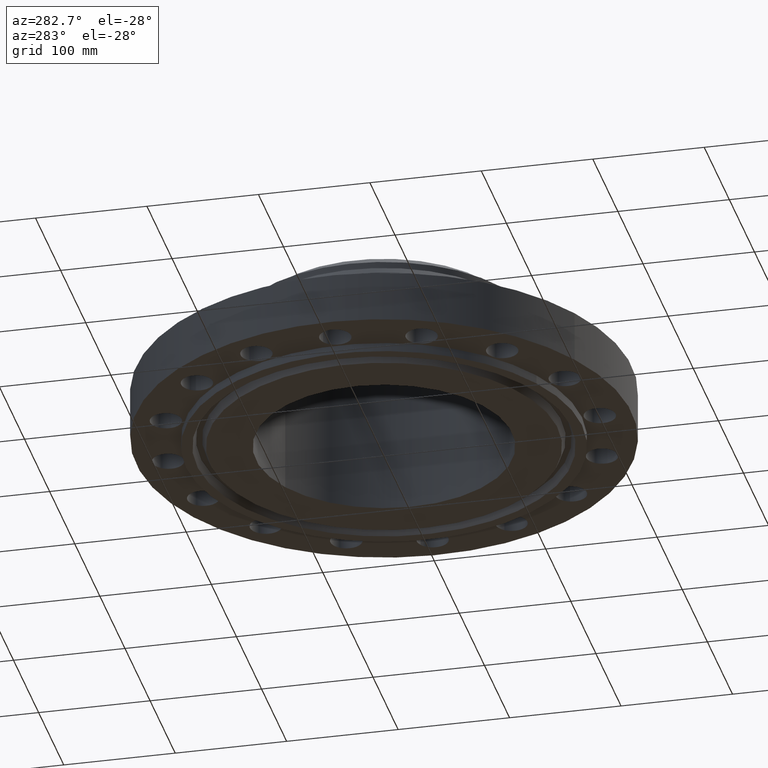
[diagram: clean part render]
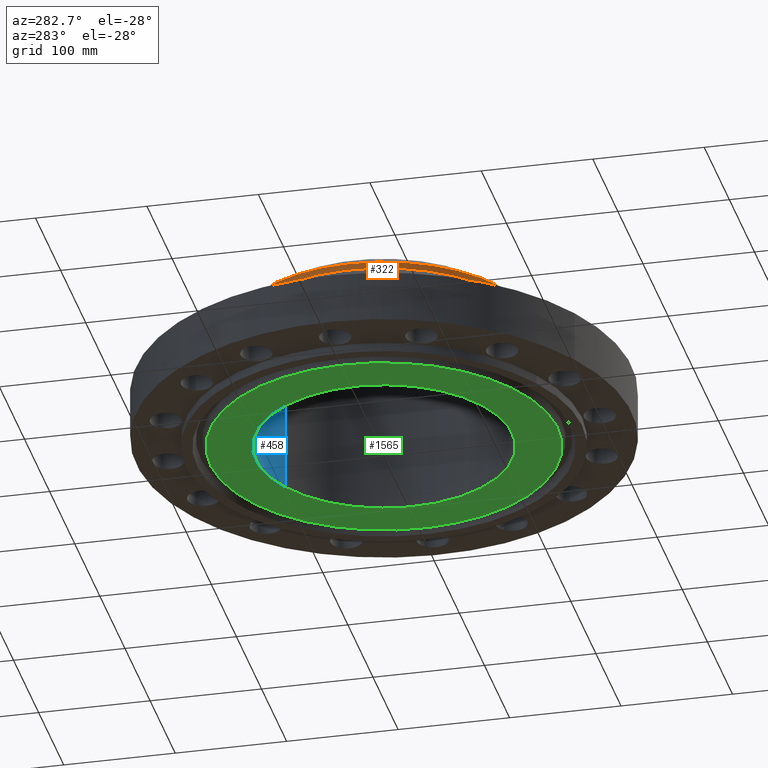
[diagram: same view with three faces highlighted in distinct colors, each labeled with its STEP entity id]
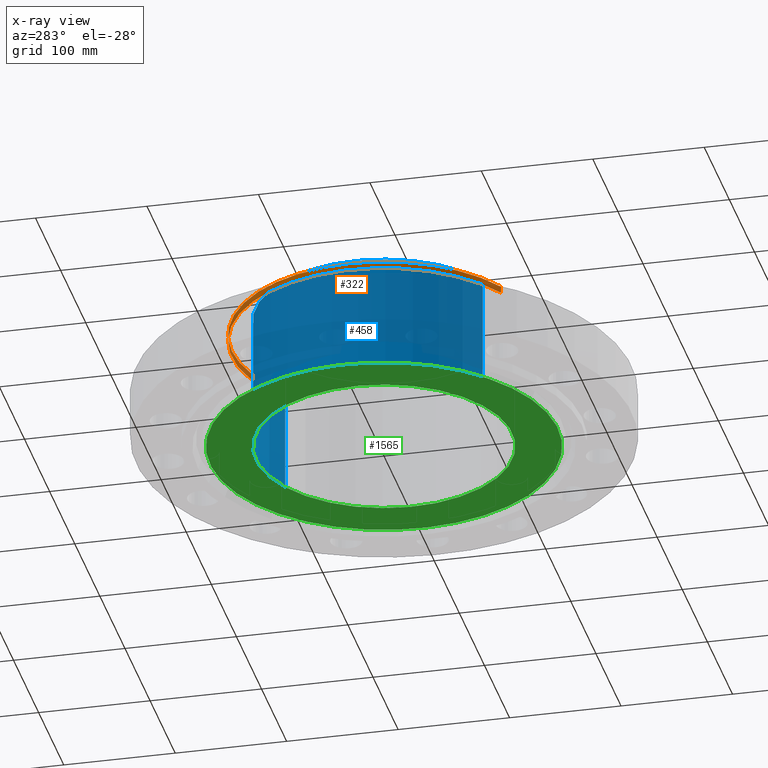
[diagram: x-ray of the same camera — body ghosted, the three highlighted faces saturated]
A machine part, auxiliary view with three faces highlighted in distinct colors.
The next image is the same camera in x-ray (body ghosted, the three faces saturated) — at least one of them is partly hidden behind the body in this view.
Their STEP definitions:

[orange] entity #322 — the highlighted cylindrical surface (partial cylindrical patch) has radius 136.525 mm, axis along (0, 0, -1).
#254=AXIS2_PLACEMENT_3D('Circle Axis2P3D',#252,#253,$) ;
#267=AXIS2_PLACEMENT_3D('Cylinder Axis2P3D',#264,#265,#266) ;
#305=AXIS2_PLACEMENT_3D('Circle Axis2P3D',#303,#304,$) ;
#312=AXIS2_PLACEMENT_3D('Circle Axis2P3D',#310,#311,$) ;
#230=CARTESIAN_POINT('Vertex',(2.57691227001,4.71700627018,3.79329238412)) ;
#237=CARTESIAN_POINT('Vertex',(-2.57691227001,-4.71700627018,3.79329238412)) ;
#252=CARTESIAN_POINT('Axis2P3D Location',(0.,0.,3.79329238412)) ;
#264=CARTESIAN_POINT('Axis2P3D Location',(0.,0.,2.12350000001)) ;
#269=CARTESIAN_POINT('Line Origine',(-2.57691227001,-4.71700627018,3.91140262034)) ;
#273=CARTESIAN_POINT('Vertex',(-2.57691227001,-4.71700627018,4.02951285656)) ;
#276=CARTESIAN_POINT('Line Origine',(2.57691227001,4.71700627018,3.91140262034)) ;
#280=CARTESIAN_POINT('Vertex',(2.57691227001,4.71700627018,4.02951285656)) ;
#303=CARTESIAN_POINT('Axis2P3D Location',(0.,0.,4.02951285656)) ;
#307=CARTESIAN_POINT('Vertex',(-2.57691227001,4.71700627018,4.02951285656)) ;
#310=CARTESIAN_POINT('Axis2P3D Location',(0.,0.,4.02951285656)) ;
#253=DIRECTION('Axis2P3D Direction',(0.,0.,-0.0393700787402)) ;
#265=DIRECTION('Axis2P3D Direction',(0.,0.,-0.0393700787402)) ;
#266=DIRECTION('Axis2P3D XDirection',(-0.0188750212049,-0.0345504945626,0.)) ;
#270=DIRECTION('Vector Direction',(0.,0.,-0.0393700787402)) ;
#277=DIRECTION('Vector Direction',(0.,0.,-0.0393700787402)) ;
#304=DIRECTION('Axis2P3D Direction',(0.,0.,-0.0393700787402)) ;
#311=DIRECTION('Axis2P3D Direction',(0.,0.,-0.0393700787402)) ;
#271=VECTOR('Line Direction',#270,0.0393700787402) ;
#278=VECTOR('Line Direction',#277,0.0393700787402) ;
#316=ORIENTED_EDGE('',*,*,#282,.F.) ;
#317=ORIENTED_EDGE('',*,*,#256,.F.) ;
#318=ORIENTED_EDGE('',*,*,#275,.T.) ;
#319=ORIENTED_EDGE('',*,*,#309,.F.) ;
#320=ORIENTED_EDGE('',*,*,#314,.T.) ;
#322=ADVANCED_FACE('PartBody',(#321),#268,.T.) ;
#255=CIRCLE('generated circle',#254,5.37500000002) ;
#306=CIRCLE('generated circle',#305,5.37500000002) ;
#313=CIRCLE('generated circle',#312,5.37500000002) ;
#268=CYLINDRICAL_SURFACE('generated cylinder',#267,5.37500000002) ;
#256=EDGE_CURVE('',#238,#231,#255,.T.) ;
#275=EDGE_CURVE('',#238,#274,#272,.F.) ;
#282=EDGE_CURVE('',#231,#281,#279,.F.) ;
#309=EDGE_CURVE('',#308,#274,#306,.F.) ;
#314=EDGE_CURVE('',#308,#281,#313,.T.) ;
#315=EDGE_LOOP('',(#316,#317,#318,#319,#320)) ;
#321=FACE_OUTER_BOUND('',#315,.T.) ;
#272=LINE('Line',#269,#271) ;
#279=LINE('Line',#276,#278) ;
#231=VERTEX_POINT('',#230) ;
#238=VERTEX_POINT('',#237) ;
#274=VERTEX_POINT('',#273) ;
#281=VERTEX_POINT('',#280) ;
#308=VERTEX_POINT('',#307) ;

[blue] entity #458 — the highlighted cylindrical surface (partial cylindrical patch) has radius 115.087 mm, axis along (0, 0, -1).
#380=AXIS2_PLACEMENT_3D('Circle Axis2P3D',#378,#379,$) ;
#431=AXIS2_PLACEMENT_3D('Cylinder Axis2P3D',#428,#429,#430) ;
#442=AXIS2_PLACEMENT_3D('Circle Axis2P3D',#440,#441,$) ;
#378=CARTESIAN_POINT('Axis2P3D Location',(0.,0.,4.56000000002)) ;
#382=CARTESIAN_POINT('Vertex',(-2.17227711542,-3.97632658794,4.56000000002)) ;
#384=CARTESIAN_POINT('Vertex',(2.17227711542,3.97632658794,4.56000000002)) ;
#428=CARTESIAN_POINT('Axis2P3D Location',(0.,0.,2.12350000001)) ;
#433=CARTESIAN_POINT('Line Origine',(-2.17227711542,-3.97632658794,2.12350000001)) ;
#437=CARTESIAN_POINT('Vertex',(-2.17227711542,-3.97632658794,-0.313000000001)) ;
#440=CARTESIAN_POINT('Axis2P3D Location',(0.,0.,-0.313000000001)) ;
#444=CARTESIAN_POINT('Vertex',(2.17227711542,3.97632658794,-0.313000000001)) ;
#447=CARTESIAN_POINT('Line Origine',(2.17227711542,3.97632658794,2.12350000001)) ;
#379=DIRECTION('Axis2P3D Direction',(0.,0.,-0.0393700787402)) ;
#429=DIRECTION('Axis2P3D Direction',(0.,0.,-0.0393700787402)) ;
#430=DIRECTION('Axis2P3D XDirection',(0.0188750212049,0.0345504945626,0.)) ;
#434=DIRECTION('Vector Direction',(0.,0.,-0.0393700787402)) ;
#441=DIRECTION('Axis2P3D Direction',(0.,0.,-0.0393700787402)) ;
#448=DIRECTION('Vector Direction',(0.,0.,-0.0393700787402)) ;
#435=VECTOR('Line Direction',#434,0.0393700787402) ;
#449=VECTOR('Line Direction',#448,0.0393700787402) ;
#453=ORIENTED_EDGE('',*,*,#386,.F.) ;
#454=ORIENTED_EDGE('',*,*,#439,.T.) ;
#455=ORIENTED_EDGE('',*,*,#446,.T.) ;
#456=ORIENTED_EDGE('',*,*,#451,.F.) ;
#458=ADVANCED_FACE('PartBody',(#457),#432,.F.) ;
#381=CIRCLE('generated circle',#380,4.53100000002) ;
#443=CIRCLE('generated circle',#442,4.53100000002) ;
#432=CYLINDRICAL_SURFACE('generated cylinder',#431,4.53100000002) ;
#386=EDGE_CURVE('',#383,#385,#381,.T.) ;
#439=EDGE_CURVE('',#383,#438,#436,.T.) ;
#446=EDGE_CURVE('',#438,#445,#443,.T.) ;
#451=EDGE_CURVE('',#385,#445,#450,.T.) ;
#452=EDGE_LOOP('',(#453,#454,#455,#456)) ;
#457=FACE_OUTER_BOUND('',#452,.T.) ;
#436=LINE('Line',#433,#435) ;
#450=LINE('Line',#447,#449) ;
#383=VERTEX_POINT('',#382) ;
#385=VERTEX_POINT('',#384) ;
#438=VERTEX_POINT('',#437) ;
#445=VERTEX_POINT('',#444) ;

[green] entity #1565 — the highlighted planar face has unit normal (0, 0, -1).
#442=AXIS2_PLACEMENT_3D('Circle Axis2P3D',#440,#441,$) ;
#461=AXIS2_PLACEMENT_3D('Circle Axis2P3D',#459,#460,$) ;
#1518=AXIS2_PLACEMENT_3D('Plane Axis2P3D',#1515,#1516,#1517) ;
#1545=AXIS2_PLACEMENT_3D('Circle Axis2P3D',#1543,#1544,$) ;
#1554=AXIS2_PLACEMENT_3D('Circle Axis2P3D',#1552,#1553,$) ;
#437=CARTESIAN_POINT('Vertex',(-2.17227711542,-3.97632658794,-0.313000000001)) ;
#440=CARTESIAN_POINT('Axis2P3D Location',(0.,0.,-0.313000000001)) ;
#444=CARTESIAN_POINT('Vertex',(2.17227711542,3.97632658794,-0.313000000001)) ;
#459=CARTESIAN_POINT('Axis2P3D Location',(0.,0.,-0.313000000001)) ;
#1515=CARTESIAN_POINT('Axis2P3D Location',(0.,4.53100000002,-0.313000000001)) ;
#1543=CARTESIAN_POINT('Axis2P3D Location',(2.23792987641E-015,-5.59482469102E-016,-0.313000000001)) ;
#1547=CARTESIAN_POINT('Vertex',(-2.94391251981,5.38879572131,-0.313000000001)) ;
#1549=CARTESIAN_POINT('Vertex',(2.94391251981,-5.38879572131,-0.313000000001)) ;
#1552=CARTESIAN_POINT('Axis2P3D Location',(0.,0.,-0.313000000001)) ;
#441=DIRECTION('Axis2P3D Direction',(0.,0.,-0.0393700787402)) ;
#460=DIRECTION('Axis2P3D Direction',(0.,0.,-0.0393700787402)) ;
#1516=DIRECTION('Axis2P3D Direction',(0.,0.,-0.0393700787402)) ;
#1517=DIRECTION('Axis2P3D XDirection',(0.0393700787402,0.,0.)) ;
#1544=DIRECTION('Axis2P3D Direction',(0.,0.,-0.0393700787402)) ;
#1553=DIRECTION('Axis2P3D Direction',(0.,0.,-0.0393700787402)) ;
#1558=ORIENTED_EDGE('',*,*,#1551,.T.) ;
#1559=ORIENTED_EDGE('',*,*,#1556,.T.) ;
#1562=ORIENTED_EDGE('',*,*,#463,.F.) ;
#1563=ORIENTED_EDGE('',*,*,#446,.F.) ;
#1564=FACE_BOUND('',#1561,.T.) ;
#1565=ADVANCED_FACE('PartBody',(#1560,#1564),#1519,.T.) ;
#443=CIRCLE('generated circle',#442,4.53100000002) ;
#462=CIRCLE('generated circle',#461,4.53100000002) ;
#1546=CIRCLE('generated circle',#1545,6.14050000002) ;
#1555=CIRCLE('generated circle',#1554,6.14050000002) ;
#446=EDGE_CURVE('',#438,#445,#443,.T.) ;
#463=EDGE_CURVE('',#445,#438,#462,.T.) ;
#1551=EDGE_CURVE('',#1548,#1550,#1546,.T.) ;
#1556=EDGE_CURVE('',#1550,#1548,#1555,.T.) ;
#1557=EDGE_LOOP('',(#1558,#1559)) ;
#1561=EDGE_LOOP('',(#1562,#1563)) ;
#1560=FACE_OUTER_BOUND('',#1557,.T.) ;
#1519=PLANE('',#1518) ;
#438=VERTEX_POINT('',#437) ;
#445=VERTEX_POINT('',#444) ;
#1548=VERTEX_POINT('',#1547) ;
#1550=VERTEX_POINT('',#1549) ;